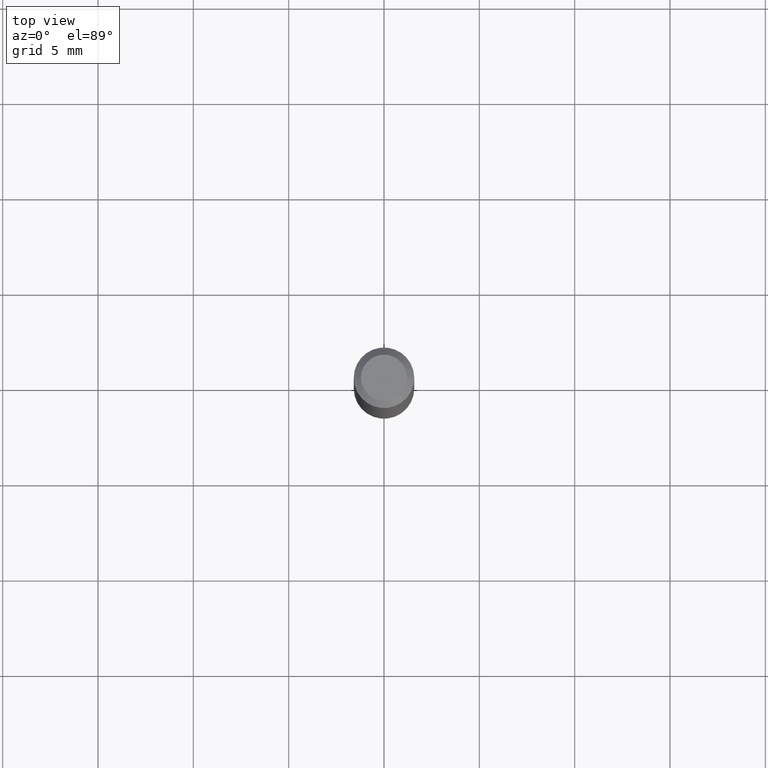
[diagram: clean part render]
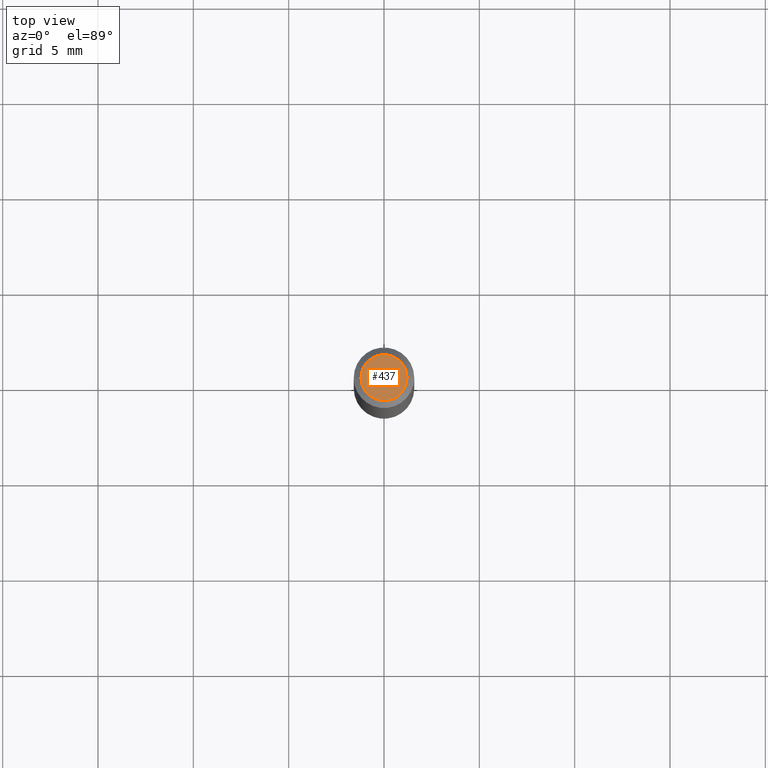
[diagram: same view with one face highlighted and labeled with its STEP entity id]
A machine part, top view. The second image highlights one B-rep face of the part: STEP entity #437.
In plain terms, the highlighted planar face has unit normal (0, -0, -1).
Its self-contained STEP definition (entity closure, byte-faithful):
#11 = EDGE_LOOP ( 'NONE', ( #233, #201 ) ) ;
#29 = AXIS2_PLACEMENT_3D ( 'NONE', #275, #241, #105 ) ;
#37 = DIRECTION ( 'NONE',  ( 1.000000000000000000, -6.982962677686267499E-15, 4.852736867747366768E-29 ) ) ;
#72 = CIRCLE ( 'NONE', #397, 0.04749999999999999362 ) ;
#78 = DIRECTION ( 'NONE',  ( -2.445468806185136597E-29, 3.491481338843145583E-15, 1.000000000000000000 ) ) ;
#92 = CARTESIAN_POINT ( 'NONE',  ( -0.04749999999999999362, 3.578768372314215436E-16, 2.354505479474137135E-16 ) ) ;
#99 = DIRECTION ( 'NONE',  ( 1.000000000000000000, -6.982962677686267499E-15, 4.852736867747366768E-29 ) ) ;
#105 = DIRECTION ( 'NONE',  ( -1.000000000000000000, 6.982962677686265922E-15, -4.876176775795935793E-29 ) ) ;
#192 = EDGE_CURVE ( 'NONE', #368, #384, #72, .T. ) ;
#201 = ORIENTED_EDGE ( 'NONE', *, *, #440, .T. ) ;
#233 = ORIENTED_EDGE ( 'NONE', *, *, #192, .T. ) ;
#241 = DIRECTION ( 'NONE',  ( 2.438088387897960049E-29, -3.491481338843145188E-15, -1.000000000000000000 ) ) ;
#275 = CARTESIAN_POINT ( 'NONE',  ( 3.316907271900976096E-16, 0.04749999999999999362, -4.812008962134135024E-17 ) ) ;
#298 = FACE_OUTER_BOUND ( 'NONE', #11, .T. ) ;
#310 = CIRCLE ( 'NONE', #371, 0.04749999999999999362 ) ;
#311 = DIRECTION ( 'NONE',  ( -2.445468806185136597E-29, 3.491481338843145583E-15, 1.000000000000000000 ) ) ;
#341 = CARTESIAN_POINT ( 'NONE',  ( 0.04749999999999999362, -4.035134999187574186E-16, 2.354505479474186932E-16 ) ) ;
#366 = CARTESIAN_POINT ( 'NONE',  ( -5.757869704046039586E-45, 8.220711943787967025E-31, 2.354505479474161294E-16 ) ) ;
#368 = VERTEX_POINT ( 'NONE', #92 ) ;
#371 = AXIS2_PLACEMENT_3D ( 'NONE', #453, #311, #99 ) ;
#384 = VERTEX_POINT ( 'NONE', #341 ) ;
#397 = AXIS2_PLACEMENT_3D ( 'NONE', #366, #78, #37 ) ;
#437 = ADVANCED_FACE ( 'NONE', ( #298 ), #439, .F. ) ;
#439 = PLANE ( 'NONE',  #29 ) ;
#440 = EDGE_CURVE ( 'NONE', #384, #368, #310, .T. ) ;
#453 = CARTESIAN_POINT ( 'NONE',  ( -5.757869704046039586E-45, 8.220711943787967025E-31, 2.354505479474161294E-16 ) ) ;